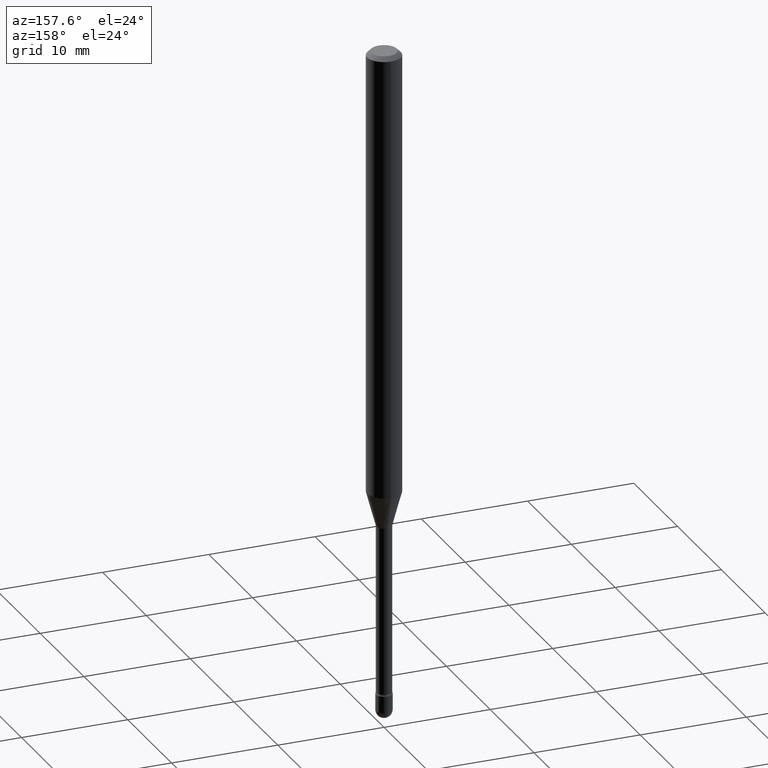
[diagram: clean part render]
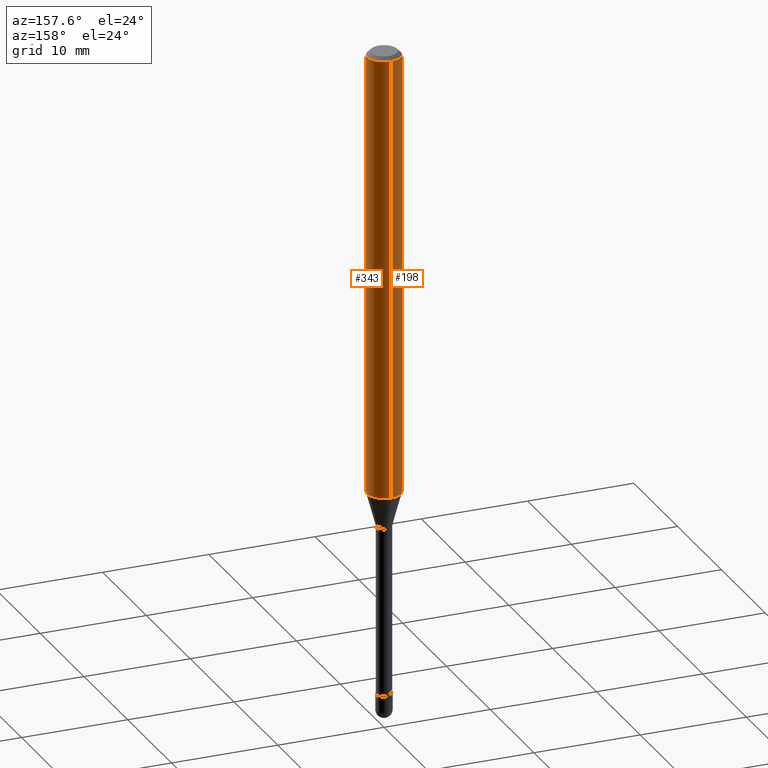
[diagram: same view with one multi-face feature highlighted, each face labeled with its STEP entity id]
A machine part, auxiliary view. The highlighted faces form ONE feature: a constant-radius fillet chain: 2 tangent blend faces with common blend radius 1.5875 mm. The faces share edges in the B-rep.
Their STEP definitions:
[1] entity #343 (Cylinder):
#25 = CARTESIAN_POINT ( 'NONE',  ( 4.039828952651802244E-29, -5.767984295886507210E-15, -1.651990657300387966 ) ) ;
#27 = CARTESIAN_POINT ( 'NONE',  ( -4.364351673553912750E-16, -0.06250000000000005551, -0.01499999999999986587 ) ) ;
#28 = LINE ( 'NONE', #367, #508 ) ;
#62 = DIRECTION ( 'NONE',  ( -6.982962677686265922E-15, -1.000000000000000000, 3.491535663592855086E-15 ) ) ;
#64 = LINE ( 'NONE', #201, #123 ) ;
#73 = AXIS2_PLACEMENT_3D ( 'NONE', #25, #284, #448 ) ;
#104 = CARTESIAN_POINT ( 'NONE',  ( -1.169113584055446105E-44, 1.669184350826100908E-30, 4.780733988912460139E-16 ) ) ;
#123 = VECTOR ( 'NONE', #411, 39.37007874015748143 ) ;
#144 = AXIS2_PLACEMENT_3D ( 'NONE', #397, #189, #185 ) ;
#185 = DIRECTION ( 'NONE',  ( -6.982962677686265922E-15, -1.000000000000000000, 3.483106191921935554E-15 ) ) ;
#189 = DIRECTION ( 'NONE',  ( -2.445430871415166747E-29, 3.491535663592855480E-15, 1.000000000000000000 ) ) ;
#201 = CARTESIAN_POINT ( 'NONE',  ( -4.364351673553916201E-16, -0.06250000000000000000, 6.962943778657995554E-16 ) ) ;
#214 = EDGE_CURVE ( 'NONE', #279, #416, #389, .T. ) ;
#217 = VERTEX_POINT ( 'NONE', #357 ) ;
#266 = ORIENTED_EDGE ( 'NONE', *, *, #532, .T. ) ;
#279 = VERTEX_POINT ( 'NONE', #27 ) ;
#284 = DIRECTION ( 'NONE',  ( -2.445430871415166747E-29, 3.491535663592855480E-15, 1.000000000000000000 ) ) ;
#291 = ORIENTED_EDGE ( 'NONE', *, *, #554, .T. ) ;
#292 = CIRCLE ( 'NONE', #73, 0.06250000000000000000 ) ;
#303 = EDGE_LOOP ( 'NONE', ( #266, #291, #440, #529 ) ) ;
#305 = VERTEX_POINT ( 'NONE', #429 ) ;
#337 = AXIS2_PLACEMENT_3D ( 'NONE', #104, #487, #62 ) ;
#343 = ADVANCED_FACE ( 'NONE', ( #348 ), #494, .T. ) ;
#348 = FACE_OUTER_BOUND ( 'NONE', #303, .T. ) ;
#357 = CARTESIAN_POINT ( 'NONE',  ( -4.364351673553514375E-16, -0.06250000000000580092, -1.651990657300387744 ) ) ;
#367 = CARTESIAN_POINT ( 'NONE',  ( 4.440892098500625669E-16, 0.06250000000000000000, 2.598524199166925711E-16 ) ) ;
#389 = CIRCLE ( 'NONE', #144, 0.06250000000000000000 ) ;
#397 = CARTESIAN_POINT ( 'NONE',  ( 3.668146307122770334E-31, -5.237303495389312310E-17, -0.01500000000000008271 ) ) ;
#411 = DIRECTION ( 'NONE',  ( -2.445430871415166747E-29, 3.491535663592855086E-15, 1.000000000000000000 ) ) ;
#416 = VERTEX_POINT ( 'NONE', #520 ) ;
#429 = CARTESIAN_POINT ( 'NONE',  ( 4.440892098501027495E-16, 0.06249999999999421296, -1.651990657300388188 ) ) ;
#440 = ORIENTED_EDGE ( 'NONE', *, *, #214, .F. ) ;
#448 = DIRECTION ( 'NONE',  ( -6.982962677686265922E-15, -1.000000000000000000, 4.370956789862821150E-15 ) ) ;
#487 = DIRECTION ( 'NONE',  ( -2.445430871415166747E-29, 3.491535663592855480E-15, 1.000000000000000000 ) ) ;
#494 = CYLINDRICAL_SURFACE ( 'NONE', #337, 0.06250000000000000000 ) ;
#508 = VECTOR ( 'NONE', #550, 39.37007874015748143 ) ;
#520 = CARTESIAN_POINT ( 'NONE',  ( 4.440892098501032425E-16, 0.06249999999999995143, -0.01500000000000030129 ) ) ;
#529 = ORIENTED_EDGE ( 'NONE', *, *, #543, .F. ) ;
#532 = EDGE_CURVE ( 'NONE', #217, #305, #292, .T. ) ;
#543 = EDGE_CURVE ( 'NONE', #217, #279, #64, .T. ) ;
#550 = DIRECTION ( 'NONE',  ( -2.445430871415166747E-29, 3.491535663592855086E-15, 1.000000000000000000 ) ) ;
#554 = EDGE_CURVE ( 'NONE', #305, #416, #28, .T. ) ;
[2] entity #198 (Cylinder):
#7 = ORIENTED_EDGE ( 'NONE', *, *, #363, .F. ) ;
#8 = ORIENTED_EDGE ( 'NONE', *, *, #543, .T. ) ;
#27 = CARTESIAN_POINT ( 'NONE',  ( -4.364351673553912750E-16, -0.06250000000000005551, -0.01499999999999986587 ) ) ;
#28 = LINE ( 'NONE', #367, #508 ) ;
#55 = FACE_OUTER_BOUND ( 'NONE', #247, .T. ) ;
#60 = DIRECTION ( 'NONE',  ( -6.982962677686265922E-15, -1.000000000000000000, 3.491535663592855086E-15 ) ) ;
#64 = LINE ( 'NONE', #201, #123 ) ;
#102 = CARTESIAN_POINT ( 'NONE',  ( 4.039828952651802244E-29, -5.767984295886507210E-15, -1.651990657300387966 ) ) ;
#123 = VECTOR ( 'NONE', #411, 39.37007874015748143 ) ;
#126 = AXIS2_PLACEMENT_3D ( 'NONE', #102, #546, #534 ) ;
#172 = ORIENTED_EDGE ( 'NONE', *, *, #177, .T. ) ;
#177 = EDGE_CURVE ( 'NONE', #305, #217, #512, .T. ) ;
#184 = ORIENTED_EDGE ( 'NONE', *, *, #554, .F. ) ;
#186 = CYLINDRICAL_SURFACE ( 'NONE', #361, 0.06250000000000000000 ) ;
#198 = ADVANCED_FACE ( 'NONE', ( #55 ), #186, .T. ) ;
#201 = CARTESIAN_POINT ( 'NONE',  ( -4.364351673553916201E-16, -0.06250000000000000000, 6.962943778657995554E-16 ) ) ;
#217 = VERTEX_POINT ( 'NONE', #357 ) ;
#228 = DIRECTION ( 'NONE',  ( -6.982962677686265922E-15, -1.000000000000000000, 3.483106191921935554E-15 ) ) ;
#229 = CARTESIAN_POINT ( 'NONE',  ( -1.169113584055446105E-44, 1.669184350826100908E-30, 4.780733988912460139E-16 ) ) ;
#247 = EDGE_LOOP ( 'NONE', ( #184, #172, #8, #7 ) ) ;
#279 = VERTEX_POINT ( 'NONE', #27 ) ;
#280 = CARTESIAN_POINT ( 'NONE',  ( 3.668146307122770334E-31, -5.237303495389312310E-17, -0.01500000000000008271 ) ) ;
#305 = VERTEX_POINT ( 'NONE', #429 ) ;
#353 = DIRECTION ( 'NONE',  ( -2.445430871415166747E-29, 3.491535663592855480E-15, 1.000000000000000000 ) ) ;
#357 = CARTESIAN_POINT ( 'NONE',  ( -4.364351673553514375E-16, -0.06250000000000580092, -1.651990657300387744 ) ) ;
#361 = AXIS2_PLACEMENT_3D ( 'NONE', #229, #444, #60 ) ;
#363 = EDGE_CURVE ( 'NONE', #416, #279, #517, .T. ) ;
#367 = CARTESIAN_POINT ( 'NONE',  ( 4.440892098500625669E-16, 0.06250000000000000000, 2.598524199166925711E-16 ) ) ;
#375 = AXIS2_PLACEMENT_3D ( 'NONE', #280, #353, #228 ) ;
#411 = DIRECTION ( 'NONE',  ( -2.445430871415166747E-29, 3.491535663592855086E-15, 1.000000000000000000 ) ) ;
#416 = VERTEX_POINT ( 'NONE', #520 ) ;
#429 = CARTESIAN_POINT ( 'NONE',  ( 4.440892098501027495E-16, 0.06249999999999421296, -1.651990657300388188 ) ) ;
#444 = DIRECTION ( 'NONE',  ( -2.445430871415166747E-29, 3.491535663592855480E-15, 1.000000000000000000 ) ) ;
#508 = VECTOR ( 'NONE', #550, 39.37007874015748143 ) ;
#512 = CIRCLE ( 'NONE', #126, 0.06250000000000000000 ) ;
#517 = CIRCLE ( 'NONE', #375, 0.06250000000000000000 ) ;
#520 = CARTESIAN_POINT ( 'NONE',  ( 4.440892098501032425E-16, 0.06249999999999995143, -0.01500000000000030129 ) ) ;
#534 = DIRECTION ( 'NONE',  ( -6.982962677686265922E-15, -1.000000000000000000, 4.370956789862821150E-15 ) ) ;
#543 = EDGE_CURVE ( 'NONE', #217, #279, #64, .T. ) ;
#546 = DIRECTION ( 'NONE',  ( -2.445430871415166747E-29, 3.491535663592855480E-15, 1.000000000000000000 ) ) ;
#550 = DIRECTION ( 'NONE',  ( -2.445430871415166747E-29, 3.491535663592855086E-15, 1.000000000000000000 ) ) ;
#554 = EDGE_CURVE ( 'NONE', #305, #416, #28, .T. ) ;